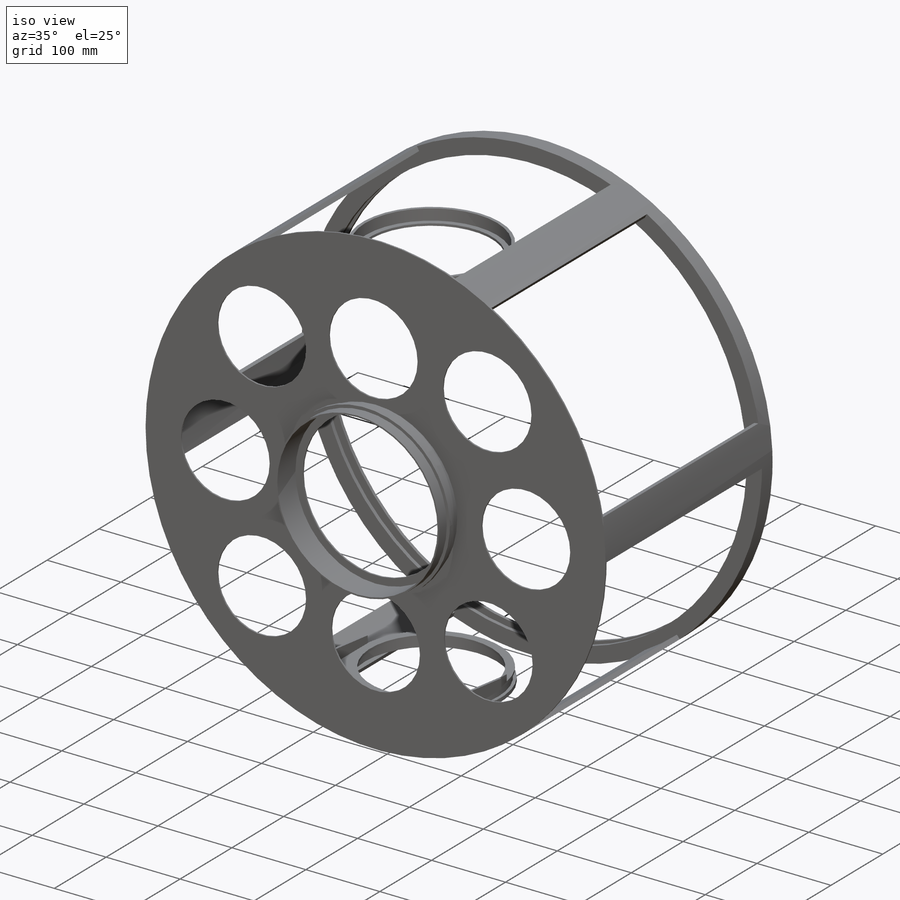
[diagram: iso view]
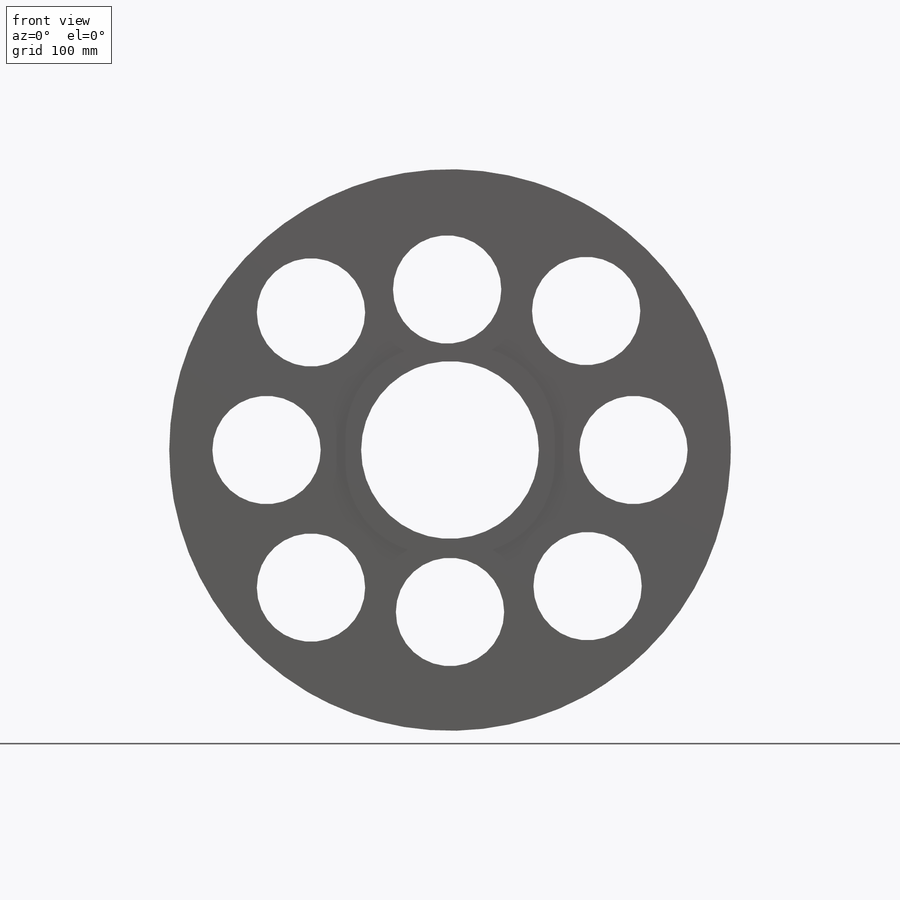
[diagram: front view]
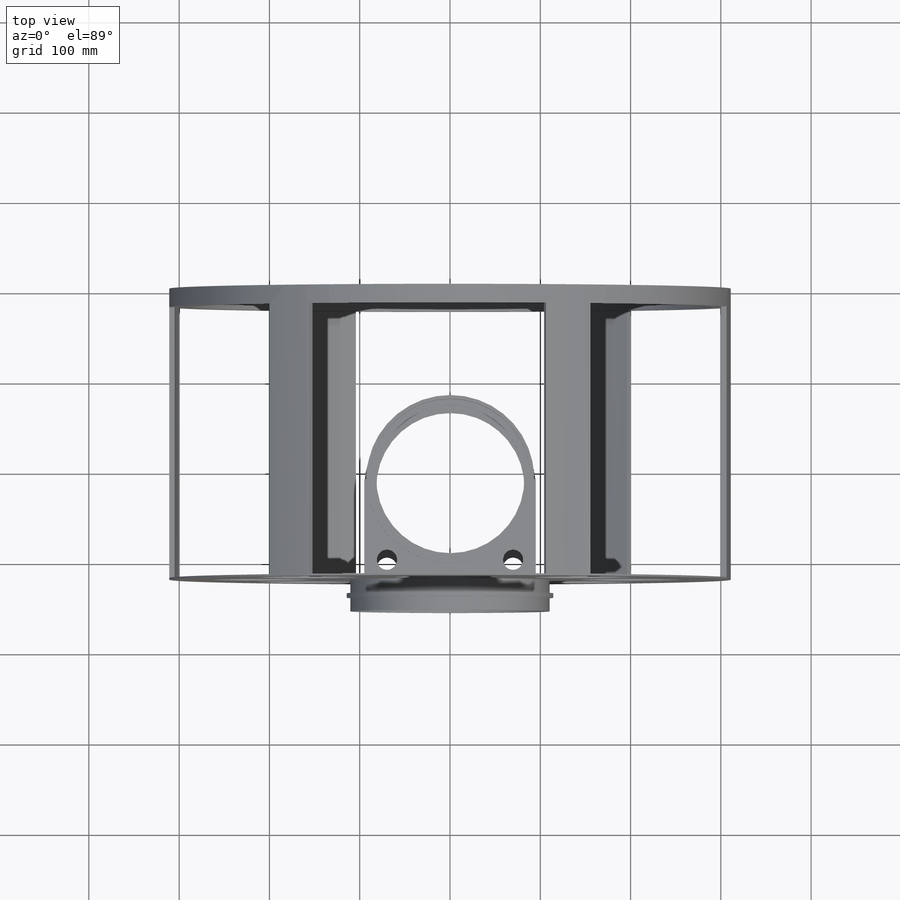
[diagram: top view]
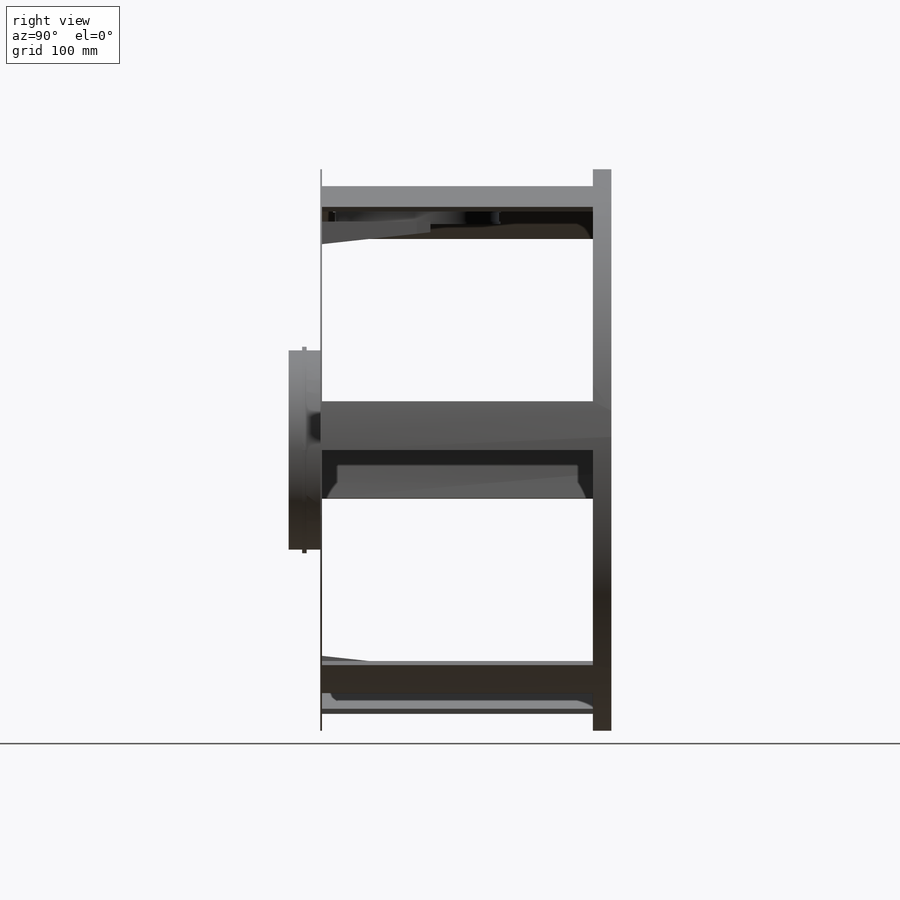
[diagram: right view]
SOLIDWORKS PART (.sldprt)
format: sldprt  version: not decoded by parser v0  size: 501,248 bytes
history: native  units: mm
features: sketch x18, extrude x13, cut_extrude x5, material x1 (+16 scaffold rows collapsed)
feature tree (53):
  scaffold x16  (default folders/planes/origin — collapsed)
  material  "6063-T4"
  sketch  "Sketch1"  dims[D1=145.05mm]
  extrude  "Extrude1"  Depth=4mm
  sketch  "Sketch3"  dims[D1=152.5mm]
  extrude  "Extrude2"  Depth=11.5mm
  sketch  "Sketch4"  dims[D1=145.05mm]
  extrude  "Extrude3"  Depth=5mm
  sketch  "Sketch5"  dims[c1.D1=152.5mm c2.D1=50.0deg]
  extrude  "Extrude4"  Depth=300mm
  sketch  "Sketch6"
  extrude  "Extrude5"  Depth=2mm
  sketch  "Sketch7"  dims[D1=~100.337486mm]
  extrude  "Extrude6"  Depth=15mm
  sketch  "Sketch8"  dims[D1=~114.344089mm]
  extrude  "Extrude7"  Depth=5mm
  sketch  "Sketch9"  dims[D1=~111.642269mm]
  extrude  "Extrude8"  Depth=15mm
  sketch  "Sketch10"  dims[c1.FROM_C=250.0mm c1.D1=250.0mm c1.D2=3.0mm c1.D3=3.0mm c1.RAD=94.96mm c1.D4=94.96mm c1.D5=94.96mm c1.D6=94.96mm c1.STRONG=25.0mm c1.D7=25.0mm c1.D8=25.0mm c1.D9=25.0mm c1.D10=3.0mm c1.D11=3.0mm c2.D7=25.0mm c2.D12=3.0mm c2.D13=3.0mm c2.D14=189.92mm c2.D10=3.0mm c2.D11=3.0mm]
  extrude  "Extrude9"  Depth=200mm
  sketch  "Sketch11"  dims[D2=92.96mm D1=94.96mm]
  extrude  "Extrude10"  Depth=10mm
  sketch  "Sketch13"  dims[D1=~93.487557mm]
  extrude  "Extrude11"  Depth=5mm
  sketch  "Sketch14"  dims[D2=~74.44214mm D1=94.96mm]
  extrude  "Extrude12"  Depth=10mm
  sketch  "Sketch15"  dims[D1=~94.548433mm]
  extrude  "Extrude13"  Depth=5mm
  sketch  "Sketch16"
  cut_extrude  "Extrude14"  [1 undecoded]
  sketch  "Sketch17"
  cut_extrude  "Extrude15"  [1 undecoded]
  sketch  "Sketch18"  dims[D1=~81.319289mm]
  cut_extrude  "Extrude16"  Depth=25mm
  sketch  "Sketch19"  dims[D1=~80.115333mm]
  cut_extrude  "Extrude18"  Depth=25mm
  sketch  "Sketch20"  dims[D1=~42.397044mm]
  cut_extrude  "Extrude19"  [1 undecoded]
decode coverage: 30 of 36 modeling features carry decoded parameters
note: ~ marks probable driven/reference dimensions
note: 3 parameter values undecoded
summary: no parameter record found for 3 features
note: suppression state not decoded; provenance and decode notes live in map.json
